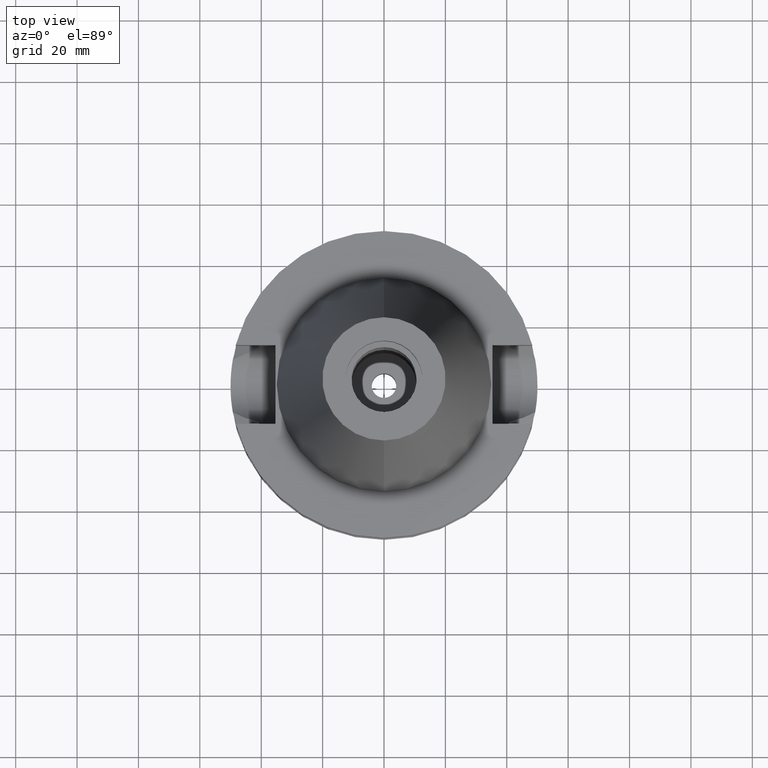
[diagram: clean part render]
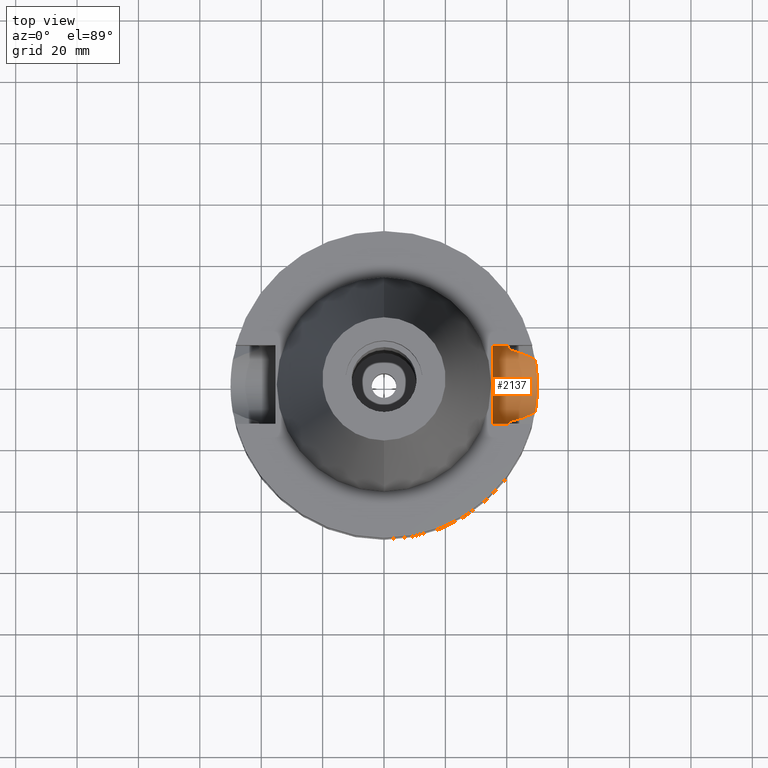
[diagram: same view with one face highlighted and labeled with its STEP entity id]
A machine part, top view. The second image highlights one B-rep face of the part: STEP entity #2137.
In plain terms, the highlighted cylindrical surface (partial cylindrical patch) has radius 12.85 mm, axis along (1, 0, 0).
Its self-contained STEP definition (entity closure, byte-faithful):
#670=CARTESIAN_POINT('',(4.926250064874E1,-8.556052234130E0,-3.073730776427E1));
#671=CARTESIAN_POINT('',(4.936650737878E1,-7.957220966409E0,-3.127172594840E1));
#672=CARTESIAN_POINT('',(4.956431120434E1,-6.687649354383E0,-3.220428436589E1));
#673=CARTESIAN_POINT('',(4.980482601638E1,-4.595643036196E0,-3.322699401064E1));
#674=CARTESIAN_POINT('',(4.996456414175E1,-2.307238175675E0,-3.386328192616E1));
#675=CARTESIAN_POINT('',(5.000000025826E1,-7.762648577910E-1,
-3.400000117529E1));
#676=CARTESIAN_POINT('',(5.000000025826E1,3.974079033290E-14,
-3.400000117529E1));
#681=CARTESIAN_POINT('',(5.000000025826E1,3.974079033290E-14,
-3.400000117529E1));
#682=CARTESIAN_POINT('',(5.000000025826E1,7.763736931511E-1,-3.400000117529E1));
#683=CARTESIAN_POINT('',(4.996455383075E1,2.307506752341E0,-3.386324206884E1));
#684=CARTESIAN_POINT('',(4.980479670211E1,4.595956347196E0,-3.322687477829E1));
#685=CARTESIAN_POINT('',(4.956427869585E1,6.687874264253E0,-3.220413787670E1));
#686=CARTESIAN_POINT('',(4.936649346246E1,7.957301091268E0,-3.127165444214E1));
#687=CARTESIAN_POINT('',(4.926250064874E1,8.556052234130E0,-3.073730776427E1));
#699=DIRECTION('',(-1.E0,-3.510427359435E-14,0.E0));
#700=VECTOR('',#699,5.110831884819E0);
#701=CARTESIAN_POINT('',(4.051083188482E1,-1.285E1,-2.115E1));
#702=LINE('',#701,#700);
#706=DIRECTION('',(1.E0,-3.336643826790E-14,0.E0));
#707=VECTOR('',#706,5.110831884819E0);
#708=CARTESIAN_POINT('',(3.54E1,1.285E1,-2.115E1));
#709=LINE('',#708,#707);
#739=CARTESIAN_POINT('',(4.085052569294E1,-1.172538061688E1,-2.640718074535E1));
#740=CARTESIAN_POINT('',(4.174792024991E1,-1.151698008011E1,-2.687198797431E1));
#741=CARTESIAN_POINT('',(4.344201209551E1,-1.105805665457E1,-2.774724120864E1));
#742=CARTESIAN_POINT('',(4.5667798E1,-1.028404129294E1,-2.889320971228E1));
#743=CARTESIAN_POINT('',(4.761166631591E1,-9.447104119730E0,-2.989144049182E1));
#744=CARTESIAN_POINT('',(4.874077925446E1,-8.855450377224E0,-3.047011428159E1));
#745=CARTESIAN_POINT('',(4.926250064874E1,-8.556052234130E0,-3.073730776427E1));
#828=CARTESIAN_POINT('',(4.926250064874E1,8.556052234130E0,-3.073730776427E1));
#829=CARTESIAN_POINT('',(4.845427506346E1,9.019865376714E0,-3.032338452613E1));
#830=CARTESIAN_POINT('',(4.674401422369E1,9.867730136297E0,-2.944650359384E1));
#831=CARTESIAN_POINT('',(4.393176132288E1,1.092038177539E1,-2.800008173283E1));
#832=CARTESIAN_POINT('',(4.190161490360E1,1.148128781066E1,-2.695159441446E1));
#833=CARTESIAN_POINT('',(4.085052569294E1,1.172538061688E1,-2.640718074535E1));
#864=CARTESIAN_POINT('',(4.085052569294E1,1.172538061688E1,-2.640718074535E1));
#865=CARTESIAN_POINT('',(4.077854327115E1,1.197616307477E1,-2.584784677658E1));
#866=CARTESIAN_POINT('',(4.065472271207E1,1.239073162697E1,-2.471136879753E1));
#867=CARTESIAN_POINT('',(4.053737510034E1,1.276678357057E1,-2.294120226876E1));
#868=CARTESIAN_POINT('',(4.051083188482E1,1.285E1,-2.175065147887E1));
#869=CARTESIAN_POINT('',(4.051083188482E1,1.285E1,-2.115E1));
#912=CARTESIAN_POINT('',(3.54E1,0.E0,-2.115E1));
#913=DIRECTION('',(-1.E0,0.E0,0.E0));
#914=DIRECTION('',(0.E0,1.E0,0.E0));
#915=AXIS2_PLACEMENT_3D('',#912,#913,#914);
#920=CARTESIAN_POINT('',(3.54E1,0.E0,-2.115E1));
#921=DIRECTION('',(-1.E0,0.E0,0.E0));
#922=DIRECTION('',(0.E0,0.E0,-1.E0));
#923=AXIS2_PLACEMENT_3D('',#920,#921,#922);
#1082=CARTESIAN_POINT('',(4.051083188482E1,-1.285E1,-2.115E1));
#1083=CARTESIAN_POINT('',(4.051083188482E1,-1.285E1,-2.175069940276E1));
#1084=CARTESIAN_POINT('',(4.053737939728E1,-1.276677010615E1,
-2.294131373627E1));
#1085=CARTESIAN_POINT('',(4.065473259263E1,-1.239069934061E1,
-2.471147259509E1));
#1086=CARTESIAN_POINT('',(4.077854870214E1,-1.197614415352E1,
-2.584788897769E1));
#1087=CARTESIAN_POINT('',(4.085052569294E1,-1.172538061688E1,
-2.640718074535E1));
#1384=VERTEX_POINT('',#681);
#1385=VERTEX_POINT('',#687);
#1386=VERTEX_POINT('',#670);
#1391=VERTEX_POINT('',#739);
#1392=VERTEX_POINT('',#1082);
#1393=CARTESIAN_POINT('',(3.54E1,-1.285E1,-2.115E1));
#1394=VERTEX_POINT('',#1393);
#1395=CARTESIAN_POINT('',(3.54E1,0.E0,-3.4E1));
#1396=VERTEX_POINT('',#1395);
#1397=CARTESIAN_POINT('',(3.54E1,1.285E1,-2.115E1));
#1398=VERTEX_POINT('',#1397);
#1399=CARTESIAN_POINT('',(4.051083188482E1,1.285E1,-2.115E1));
#1400=VERTEX_POINT('',#1399);
#1401=VERTEX_POINT('',#864);
#2112=CARTESIAN_POINT('',(3.54E1,0.E0,-2.115E1));
#2113=DIRECTION('',(1.E0,0.E0,0.E0));
#2114=DIRECTION('',(0.E0,0.E0,-1.E0));
#2115=AXIS2_PLACEMENT_3D('',#2112,#2113,#2114);
#2116=CYLINDRICAL_SURFACE('',#2115,1.285E1);
#2117=ORIENTED_EDGE('',*,*,#2098,.F.);
#2118=ORIENTED_EDGE('',*,*,#2096,.F.);
#2120=ORIENTED_EDGE('',*,*,#2119,.F.);
#2122=ORIENTED_EDGE('',*,*,#2121,.F.);
#2124=ORIENTED_EDGE('',*,*,#2123,.T.);
#2126=ORIENTED_EDGE('',*,*,#2125,.F.);
#2128=ORIENTED_EDGE('',*,*,#2127,.F.);
#2130=ORIENTED_EDGE('',*,*,#2129,.T.);
#2132=ORIENTED_EDGE('',*,*,#2131,.F.);
#2134=ORIENTED_EDGE('',*,*,#2133,.F.);
#2135=EDGE_LOOP('',(#2117,#2118,#2120,#2122,#2124,#2126,#2128,#2130,#2132,
#2134));
#2136=FACE_OUTER_BOUND('',#2135,.F.);
#677=B_SPLINE_CURVE_WITH_KNOTS('',3,(#670,#671,#672,#673,#674,#675,#676),
.UNSPECIFIED.,.F.,.F.,(4,1,1,1,4),(0.E0,2.5E-1,5.E-1,7.5E-1,1.E0),
.UNSPECIFIED.);
#688=B_SPLINE_CURVE_WITH_KNOTS('',3,(#681,#682,#683,#684,#685,#686,#687),
.UNSPECIFIED.,.F.,.F.,(4,1,1,1,4),(0.E0,2.5E-1,5.E-1,7.5E-1,1.E0),
.UNSPECIFIED.);
#746=B_SPLINE_CURVE_WITH_KNOTS('',3,(#739,#740,#741,#742,#743,#744,#745),
.UNSPECIFIED.,.F.,.F.,(4,1,1,1,4),(0.E0,2.5E-1,5.E-1,7.5E-1,1.E0),
.UNSPECIFIED.);
#834=B_SPLINE_CURVE_WITH_KNOTS('',3,(#828,#829,#830,#831,#832,#833),
.UNSPECIFIED.,.F.,.F.,(4,1,1,4),(0.E0,3.333333333333E-1,6.666666666667E-1,1.E0),
.UNSPECIFIED.);
#870=B_SPLINE_CURVE_WITH_KNOTS('',3,(#864,#865,#866,#867,#868,#869),
.UNSPECIFIED.,.F.,.F.,(4,1,1,4),(0.E0,3.333333333333E-1,6.666666666667E-1,1.E0),
.UNSPECIFIED.);
#916=CIRCLE('',#915,1.285E1);
#924=CIRCLE('',#923,1.285E1);
#1088=B_SPLINE_CURVE_WITH_KNOTS('',3,(#1082,#1083,#1084,#1085,#1086,#1087),
.UNSPECIFIED.,.F.,.F.,(4,1,1,4),(0.E0,3.333333333333E-1,6.666666666667E-1,1.E0),
.UNSPECIFIED.);
#2096=EDGE_CURVE('',#1386,#1384,#677,.T.);
#2098=EDGE_CURVE('',#1384,#1385,#688,.T.);
#2119=EDGE_CURVE('',#1391,#1386,#746,.T.);
#2121=EDGE_CURVE('',#1392,#1391,#1088,.T.);
#2123=EDGE_CURVE('',#1392,#1394,#702,.T.);
#2125=EDGE_CURVE('',#1396,#1394,#924,.T.);
#2127=EDGE_CURVE('',#1398,#1396,#916,.T.);
#2129=EDGE_CURVE('',#1398,#1400,#709,.T.);
#2131=EDGE_CURVE('',#1401,#1400,#870,.T.);
#2133=EDGE_CURVE('',#1385,#1401,#834,.T.);
#2137=ADVANCED_FACE('',(#2136),#2116,.F.);